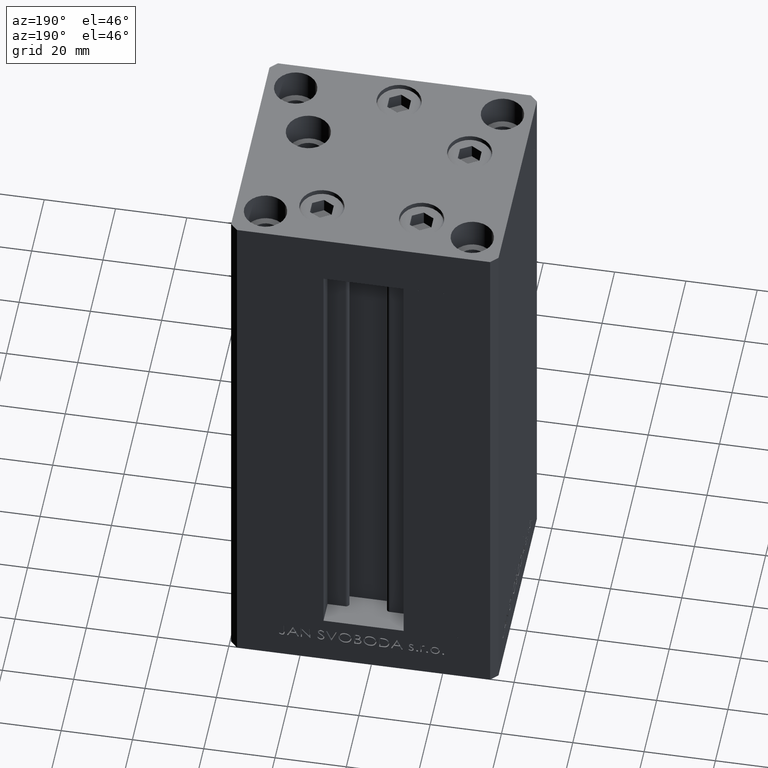
[diagram: clean part render]
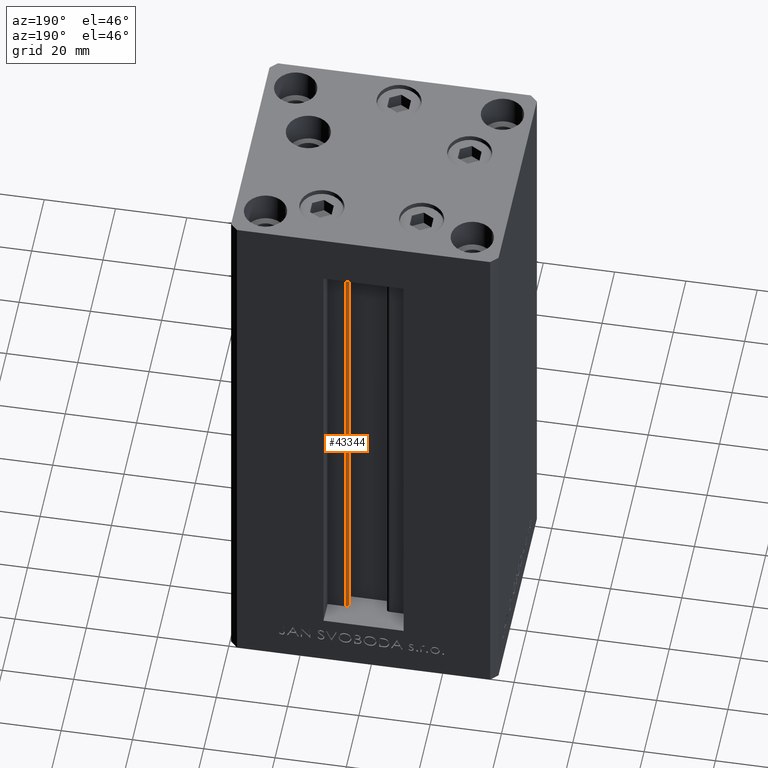
[diagram: same view with one face highlighted and labeled with its STEP entity id]
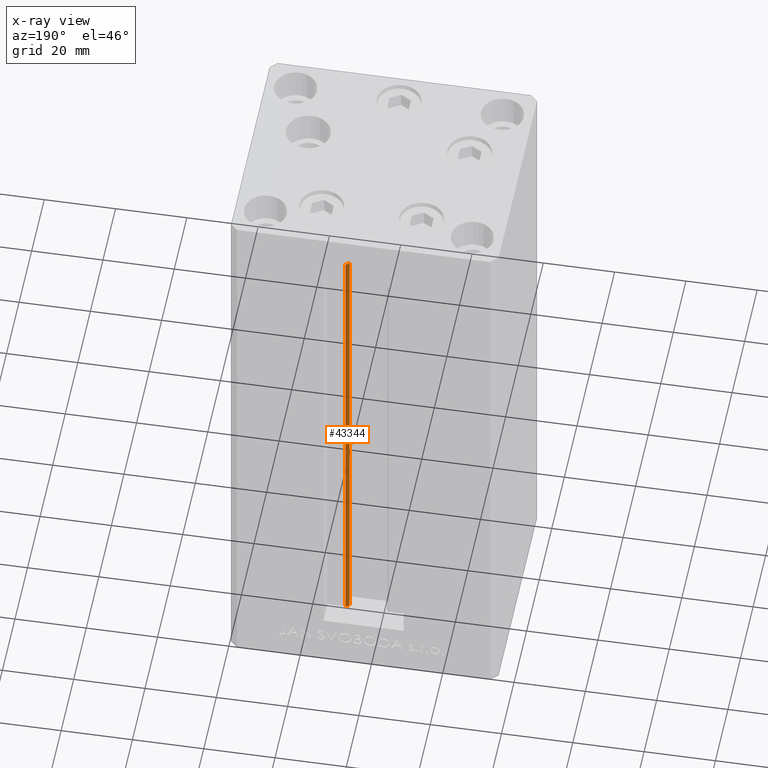
[diagram: x-ray of the same camera — body ghosted, the highlighted face saturated]
A machine part, auxiliary view. The second image highlights one B-rep face of the part: STEP entity #43344.
The next image is the same camera in x-ray: the body ghosted, the highlighted face saturated — about 0% of this face is hidden behind the body in this view.
In plain terms, the highlighted cylindrical surface (edge-blend (fillet) strip) has radius 0.9333 mm, axis along (0, 0, 1).
Its self-contained STEP definition (entity closure, byte-faithful):
#391 = VERTEX_POINT ( 'NONE', #5636 ) ;
#2221 = EDGE_CURVE ( 'NONE', #391, #10669, #16367, .T. ) ;
#2432 = AXIS2_PLACEMENT_3D ( 'NONE', #21967, #22707, #7629 ) ;
#2481 = CARTESIAN_POINT ( 'NONE',  ( 6.183333333334001480, 25.06666666666599141, 0.000000000000000000 ) ) ;
#3455 = VERTEX_POINT ( 'NONE', #19492 ) ;
#5554 = ORIENTED_EDGE ( 'NONE', *, *, #25610, .T. ) ;
#5636 = CARTESIAN_POINT ( 'NONE',  ( 6.183333333334001480, 25.99999999999999289, 0.000000000000000000 ) ) ;
#6528 = VECTOR ( 'NONE', #17403, 1000.000000000000000 ) ;
#7629 = DIRECTION ( 'NONE',  ( 1.000000000000000000, 0.000000000000000000, 0.000000000000000000 ) ) ;
#8135 = ORIENTED_EDGE ( 'NONE', *, *, #29766, .T. ) ;
#10056 = EDGE_CURVE ( 'NONE', #44234, #391, #39987, .T. ) ;
#10669 = VERTEX_POINT ( 'NONE', #12637 ) ;
#11678 = CARTESIAN_POINT ( 'NONE',  ( 5.375042956467947164, 24.59999999999899245, 0.000000000000000000 ) ) ;
#12637 = CARTESIAN_POINT ( 'NONE',  ( 6.183333333334001480, 25.99999999999999289, 136.0000000000000000 ) ) ;
#13116 = DIRECTION ( 'NONE',  ( 1.000000000000000000, 0.000000000000000000, 0.000000000000000000 ) ) ;
#14430 = CARTESIAN_POINT ( 'NONE',  ( 5.375042956467947164, 24.59999999999899245, 0.000000000000000000 ) ) ;
#16367 = LINE ( 'NONE', #23549, #20248 ) ;
#17052 = AXIS2_PLACEMENT_3D ( 'NONE', #2481, #20791, #13116 ) ;
#17165 = LINE ( 'NONE', #14430, #6528 ) ;
#17403 = DIRECTION ( 'NONE',  ( -0.000000000000000000, -0.000000000000000000, 1.000000000000000000 ) ) ;
#19492 = CARTESIAN_POINT ( 'NONE',  ( 5.375042956467948052, 24.59999999999899245, 136.0000000000000000 ) ) ;
#20248 = VECTOR ( 'NONE', #35678, 1000.000000000000000 ) ;
#20308 = DIRECTION ( 'NONE',  ( 1.000000000000000000, 0.000000000000000000, 0.000000000000000000 ) ) ;
#20791 = DIRECTION ( 'NONE',  ( -0.000000000000000000, -0.000000000000000000, -1.000000000000000000 ) ) ;
#21967 = CARTESIAN_POINT ( 'NONE',  ( 6.183333333334001480, 25.06666666666599141, 136.0000000000000000 ) ) ;
#22707 = DIRECTION ( 'NONE',  ( 0.000000000000000000, 0.000000000000000000, -1.000000000000000000 ) ) ;
#23102 = ORIENTED_EDGE ( 'NONE', *, *, #10056, .F. ) ;
#23549 = CARTESIAN_POINT ( 'NONE',  ( 6.183333333334001480, 25.99999999999999289, 0.000000000000000000 ) ) ;
#25610 = EDGE_CURVE ( 'NONE', #3455, #10669, #37999, .T. ) ;
#27484 = CARTESIAN_POINT ( 'NONE',  ( 6.183333333334001480, 25.06666666666599141, 0.000000000000000000 ) ) ;
#27729 = FACE_OUTER_BOUND ( 'NONE', #38525, .T. ) ;
#29766 = EDGE_CURVE ( 'NONE', #44234, #3455, #17165, .T. ) ;
#35678 = DIRECTION ( 'NONE',  ( -0.000000000000000000, -0.000000000000000000, 1.000000000000000000 ) ) ;
#37999 = CIRCLE ( 'NONE', #2432, 0.9333333333340008142 ) ;
#38389 = CYLINDRICAL_SURFACE ( 'NONE', #42926, 0.9333333333340008142 ) ;
#38525 = EDGE_LOOP ( 'NONE', ( #47619, #23102, #8135, #5554 ) ) ;
#38879 = DIRECTION ( 'NONE',  ( -0.000000000000000000, -0.000000000000000000, 1.000000000000000000 ) ) ;
#39987 = CIRCLE ( 'NONE', #17052, 0.9333333333340008142 ) ;
#42926 = AXIS2_PLACEMENT_3D ( 'NONE', #27484, #38879, #20308 ) ;
#43344 = ADVANCED_FACE ( 'NONE', ( #27729 ), #38389, .T. ) ;
#44234 = VERTEX_POINT ( 'NONE', #11678 ) ;
#47619 = ORIENTED_EDGE ( 'NONE', *, *, #2221, .F. ) ;